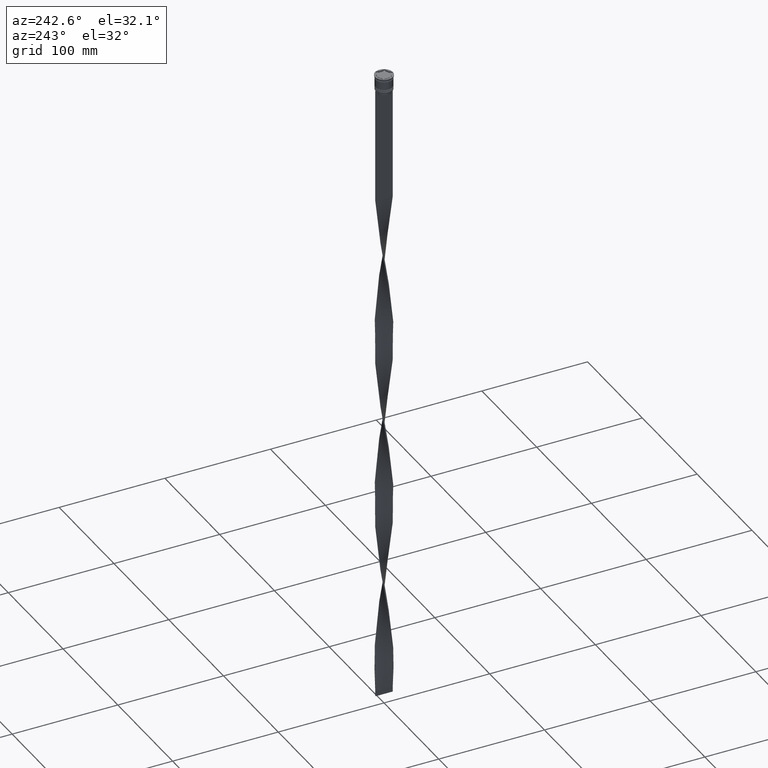
[diagram: clean part render]
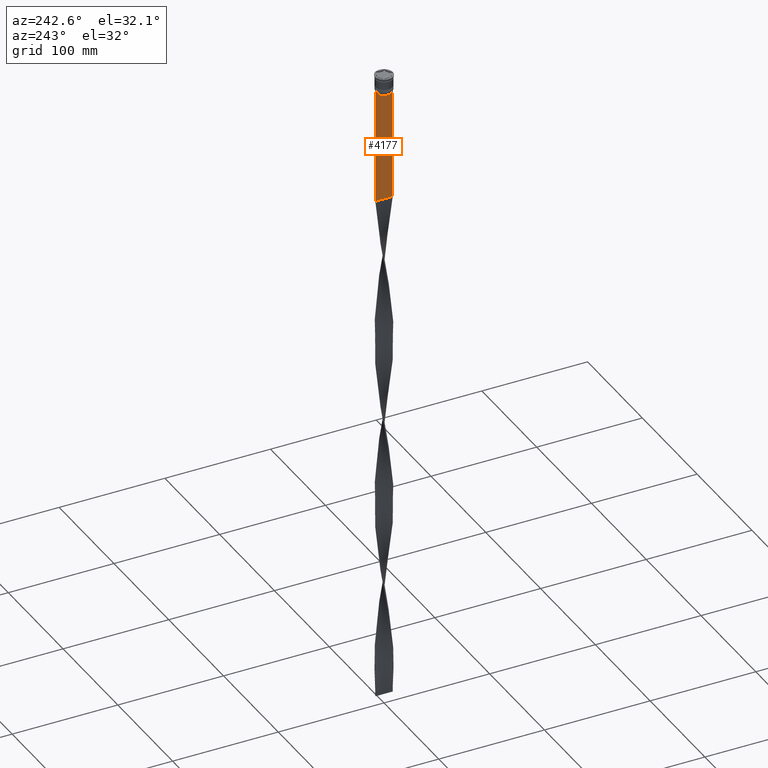
[diagram: same view with one face highlighted and labeled with its STEP entity id]
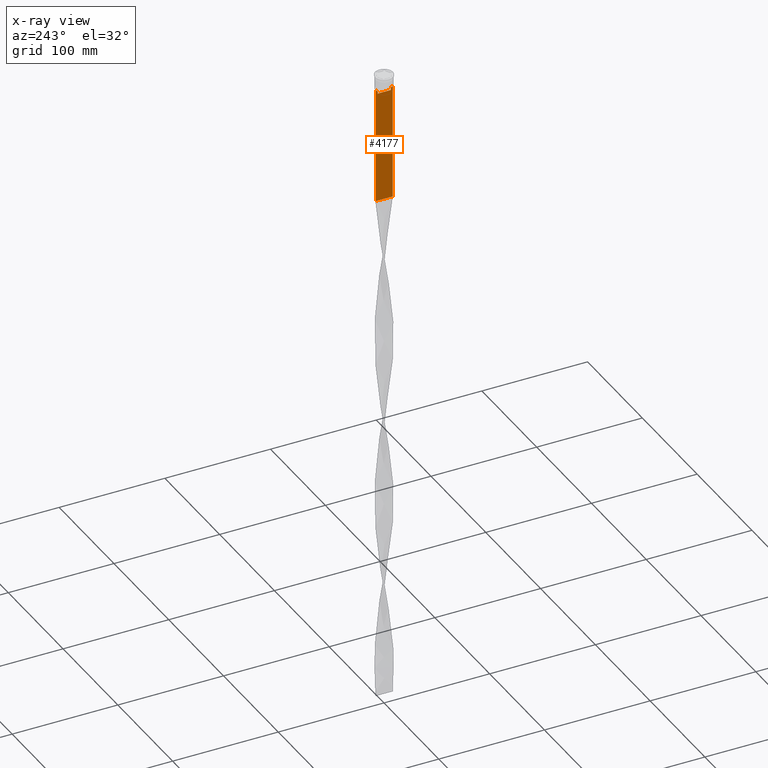
[diagram: x-ray of the same camera — body ghosted, the highlighted face saturated]
A machine part, auxiliary view. The second image highlights one B-rep face of the part: STEP entity #4177.
The next image is the same camera in x-ray: the body ghosted, the highlighted face saturated — about 0% of this face is hidden behind the body in this view.
In plain terms, the highlighted planar face has unit normal (-1, 0, 0).
Its self-contained STEP definition (entity closure, byte-faithful):
#53 = EDGE_CURVE ( 'NONE', #2467, #4355, #2342, .T. ) ;
#115 = ORIENTED_EDGE ( 'NONE', *, *, #1077, .F. ) ;
#223 = CARTESIAN_POINT ( 'NONE',  ( -0.4999999999999998890, -8.000000000000003553, 2.031219541881394530 ) ) ;
#253 = LINE ( 'NONE', #3938, #3803 ) ;
#264 = EDGE_CURVE ( 'NONE', #4355, #331, #4141, .T. ) ;
#281 = VECTOR ( 'NONE', #967, 1000.000000000000000 ) ;
#331 = VERTEX_POINT ( 'NONE', #2301 ) ;
#360 = EDGE_CURVE ( 'NONE', #1887, #660, #253, .T. ) ;
#366 = DIRECTION ( 'NONE',  ( 0.000000000000000000, 0.000000000000000000, -1.000000000000000000 ) ) ;
#534 = ORIENTED_EDGE ( 'NONE', *, *, #2700, .F. ) ;
#561 = FACE_OUTER_BOUND ( 'NONE', #3872, .T. ) ;
#601 = CARTESIAN_POINT ( 'NONE',  ( -0.4999999999999998890, -6.380438856379708312, -17.00000000000000000 ) ) ;
#606 = CARTESIAN_POINT ( 'NONE',  ( -0.4999999999999998890, -6.547597841511246131, -14.33335192438652328 ) ) ;
#611 = ORIENTED_EDGE ( 'NONE', *, *, #2128, .F. ) ;
#648 = VERTEX_POINT ( 'NONE', #2160 ) ;
#660 = VERTEX_POINT ( 'NONE', #2919 ) ;
#690 = VECTOR ( 'NONE', #3149, 1000.000000000000000 ) ;
#835 = DIRECTION ( 'NONE',  ( 0.000000000000000000, -1.000000000000000000, 0.000000000000000000 ) ) ;
#892 = CARTESIAN_POINT ( 'NONE',  ( -0.4999999999999998890, 6.547597841304911626, -14.33335192459222718 ) ) ;
#900 = DIRECTION ( 'NONE',  ( 0.000000000000000000, -1.000000000000000000, 0.000000000000000000 ) ) ;
#905 = VECTOR ( 'NONE', #1792, 1000.000000000000000 ) ;
#911 = VECTOR ( 'NONE', #366, 1000.000000000000000 ) ;
#949 = B_SPLINE_CURVE_WITH_KNOTS ( 'NONE', 3,
 ( #2708, #3364, #892, #3725 ),
 .UNSPECIFIED., .F., .F.,
 ( 4, 4 ),
 ( 0.01172465562756038263, 0.01243276816391822651 ),
 .UNSPECIFIED. ) ;
#967 = DIRECTION ( 'NONE',  ( 0.000000000000000000, -1.000000000000000000, 0.000000000000000000 ) ) ;
#983 = EDGE_CURVE ( 'NONE', #1844, #2467, #1750, .T. ) ;
#997 = CARTESIAN_POINT ( 'NONE',  ( -0.4999999999999998890, -6.380438856379708312, -14.50000000000000000 ) ) ;
#1009 = CARTESIAN_POINT ( 'NONE',  ( -0.4999999999999998890, -6.881860213634098500, -14.00000000000000178 ) ) ;
#1015 = CARTESIAN_POINT ( 'NONE',  ( -0.4999999999999998890, -6.380438856379708312, 0.000000000000000000 ) ) ;
#1077 = EDGE_CURVE ( 'NONE', #2248, #1887, #1769, .T. ) ;
#1139 = ORIENTED_EDGE ( 'NONE', *, *, #53, .F. ) ;
#1191 = VECTOR ( 'NONE', #1749, 1000.000000000000000 ) ;
#1341 = CARTESIAN_POINT ( 'NONE',  ( -0.4999999999999998890, -6.380438856379708312, -14.50000000000000000 ) ) ;
#1349 = CARTESIAN_POINT ( 'NONE',  ( -0.4999999999999998890, 6.380438856379708312, -17.00000000000000000 ) ) ;
#1415 = ORIENTED_EDGE ( 'NONE', *, *, #4084, .F. ) ;
#1502 = ORIENTED_EDGE ( 'NONE', *, *, #1895, .T. ) ;
#1559 = EDGE_CURVE ( 'NONE', #4340, #1844, #3969, .T. ) ;
#1607 = DIRECTION ( 'NONE',  ( -1.000000000000000000, 0.000000000000000000, 0.000000000000000000 ) ) ;
#1633 = ORIENTED_EDGE ( 'NONE', *, *, #1559, .F. ) ;
#1661 = CARTESIAN_POINT ( 'NONE',  ( -0.4999999999999998890, -6.881860213634098500, -14.00000000000000178 ) ) ;
#1749 = DIRECTION ( 'NONE',  ( 0.000000000000000000, -1.000000000000000000, 0.000000000000000000 ) ) ;
#1750 = LINE ( 'NONE', #1015, #905 ) ;
#1769 = LINE ( 'NONE', #2473, #690 ) ;
#1771 = LINE ( 'NONE', #2913, #911 ) ;
#1778 = VERTEX_POINT ( 'NONE', #2034 ) ;
#1792 = DIRECTION ( 'NONE',  ( -0.000000000000000000, -0.000000000000000000, 1.000000000000000000 ) ) ;
#1844 = VERTEX_POINT ( 'NONE', #601 ) ;
#1887 = VERTEX_POINT ( 'NONE', #2815 ) ;
#1895 = EDGE_CURVE ( 'NONE', #1778, #660, #1771, .T. ) ;
#1943 = VECTOR ( 'NONE', #3080, 1000.000000000000000 ) ;
#1967 = PLANE ( 'NONE',  #4318 ) ;
#1985 = LINE ( 'NONE', #4386, #281 ) ;
#2034 = CARTESIAN_POINT ( 'NONE',  ( -0.4999999999999998890, 7.999999999999996447, -14.00000000000000178 ) ) ;
#2045 = ORIENTED_EDGE ( 'NONE', *, *, #264, .F. ) ;
#2128 = EDGE_CURVE ( 'NONE', #2684, #648, #949, .T. ) ;
#2160 = CARTESIAN_POINT ( 'NONE',  ( -0.4999999999999998890, 6.380438856379708312, -14.50000000000000000 ) ) ;
#2184 = LINE ( 'NONE', #4281, #4459 ) ;
#2248 = VERTEX_POINT ( 'NONE', #4395 ) ;
#2273 = ORIENTED_EDGE ( 'NONE', *, *, #3788, .F. ) ;
#2301 = CARTESIAN_POINT ( 'NONE',  ( -0.4999999999999998890, -7.884161337770806632, -14.00000000000000178 ) ) ;
#2342 = B_SPLINE_CURVE_WITH_KNOTS ( 'NONE', 3,
 ( #997, #606, #2387, #1661 ),
 .UNSPECIFIED., .F., .F.,
 ( 4, 4 ),
 ( 0.02996184199614749730, 0.03067452609193703841 ),
 .UNSPECIFIED. ) ;
#2387 = CARTESIAN_POINT ( 'NONE',  ( -0.4999999999999998890, -6.714736947305992132, -14.16668390685738999 ) ) ;
#2405 = CARTESIAN_POINT ( 'NONE',  ( -0.4999999999999998890, 6.380438856379708312, 0.000000000000000000 ) ) ;
#2421 = CARTESIAN_POINT ( 'NONE',  ( -0.4999999999999998890, -8.000000000000003553, -14.00000000000000178 ) ) ;
#2467 = VERTEX_POINT ( 'NONE', #1341 ) ;
#2473 = CARTESIAN_POINT ( 'NONE',  ( -0.4999999999999998890, -8.000000000000003553, 2.031219541881394530 ) ) ;
#2527 = DIRECTION ( 'NONE',  ( 0.000000000000000000, 1.000000000000000000, 0.000000000000000000 ) ) ;
#2663 = DIRECTION ( 'NONE',  ( 0.000000000000000000, -1.000000000000000000, 0.000000000000000000 ) ) ;
#2684 = VERTEX_POINT ( 'NONE', #3159 ) ;
#2700 = EDGE_CURVE ( 'NONE', #1778, #3457, #2184, .T. ) ;
#2708 = CARTESIAN_POINT ( 'NONE',  ( -0.4999999999999998890, 6.881860213634098500, -14.00000000000000178 ) ) ;
#2815 = CARTESIAN_POINT ( 'NONE',  ( -0.4999999999999998890, -8.000000000000003553, -123.0000000000000000 ) ) ;
#2818 = ORIENTED_EDGE ( 'NONE', *, *, #983, .F. ) ;
#2834 = CARTESIAN_POINT ( 'NONE',  ( -0.4999999999999998890, 7.884161337770806632, -14.00000000000000178 ) ) ;
#2913 = CARTESIAN_POINT ( 'NONE',  ( -0.4999999999999998890, 7.999999999999996447, 2.031219541881394530 ) ) ;
#2919 = CARTESIAN_POINT ( 'NONE',  ( -0.4999999999999998890, 7.999999999999996447, -123.0000000000000000 ) ) ;
#2952 = ORIENTED_EDGE ( 'NONE', *, *, #360, .F. ) ;
#3080 = DIRECTION ( 'NONE',  ( 0.000000000000000000, 0.000000000000000000, -1.000000000000000000 ) ) ;
#3149 = DIRECTION ( 'NONE',  ( 0.000000000000000000, 0.000000000000000000, -1.000000000000000000 ) ) ;
#3159 = CARTESIAN_POINT ( 'NONE',  ( -0.4999999999999998890, 6.881860213634098500, -14.00000000000000178 ) ) ;
#3364 = CARTESIAN_POINT ( 'NONE',  ( -0.4999999999999998890, 6.714736947114692711, -14.16668390704818847 ) ) ;
#3427 = LINE ( 'NONE', #2405, #1943 ) ;
#3457 = VERTEX_POINT ( 'NONE', #2834 ) ;
#3648 = CARTESIAN_POINT ( 'NONE',  ( -0.4999999999999998890, 6.399999999999999467, -17.00000000000000000 ) ) ;
#3689 = CARTESIAN_POINT ( 'NONE',  ( -0.4999999999999998890, -8.000000000000003553, -14.00000000000000178 ) ) ;
#3715 = DIRECTION ( 'NONE',  ( 0.000000000000000000, 0.000000000000000000, 1.000000000000000000 ) ) ;
#3724 = LINE ( 'NONE', #3689, #3830 ) ;
#3725 = CARTESIAN_POINT ( 'NONE',  ( -0.4999999999999998890, 6.380438856379708312, -14.50000000000000000 ) ) ;
#3788 = EDGE_CURVE ( 'NONE', #3457, #2684, #3724, .T. ) ;
#3803 = VECTOR ( 'NONE', #2527, 1000.000000000000000 ) ;
#3830 = VECTOR ( 'NONE', #2663, 1000.000000000000000 ) ;
#3872 = EDGE_LOOP ( 'NONE', ( #611, #2273, #534, #1502, #2952, #115, #1415, #2045, #1139, #2818, #1633, #4157 ) ) ;
#3938 = CARTESIAN_POINT ( 'NONE',  ( -0.4999999999999998890, -8.000000000000003553, -123.0000000000000000 ) ) ;
#3969 = LINE ( 'NONE', #3648, #4242 ) ;
#4084 = EDGE_CURVE ( 'NONE', #331, #2248, #1985, .T. ) ;
#4141 = LINE ( 'NONE', #2421, #1191 ) ;
#4157 = ORIENTED_EDGE ( 'NONE', *, *, #4256, .F. ) ;
#4177 = ADVANCED_FACE ( 'NONE', ( #561 ), #1967, .T. ) ;
#4242 = VECTOR ( 'NONE', #900, 1000.000000000000000 ) ;
#4256 = EDGE_CURVE ( 'NONE', #648, #4340, #3427, .T. ) ;
#4281 = CARTESIAN_POINT ( 'NONE',  ( -0.4999999999999998890, -8.000000000000003553, -14.00000000000000178 ) ) ;
#4318 = AXIS2_PLACEMENT_3D ( 'NONE', #223, #1607, #3715 ) ;
#4340 = VERTEX_POINT ( 'NONE', #1349 ) ;
#4355 = VERTEX_POINT ( 'NONE', #1009 ) ;
#4386 = CARTESIAN_POINT ( 'NONE',  ( -0.4999999999999998890, -8.000000000000003553, -14.00000000000000178 ) ) ;
#4395 = CARTESIAN_POINT ( 'NONE',  ( -0.4999999999999998890, -8.000000000000003553, -14.00000000000000178 ) ) ;
#4459 = VECTOR ( 'NONE', #835, 1000.000000000000000 ) ;